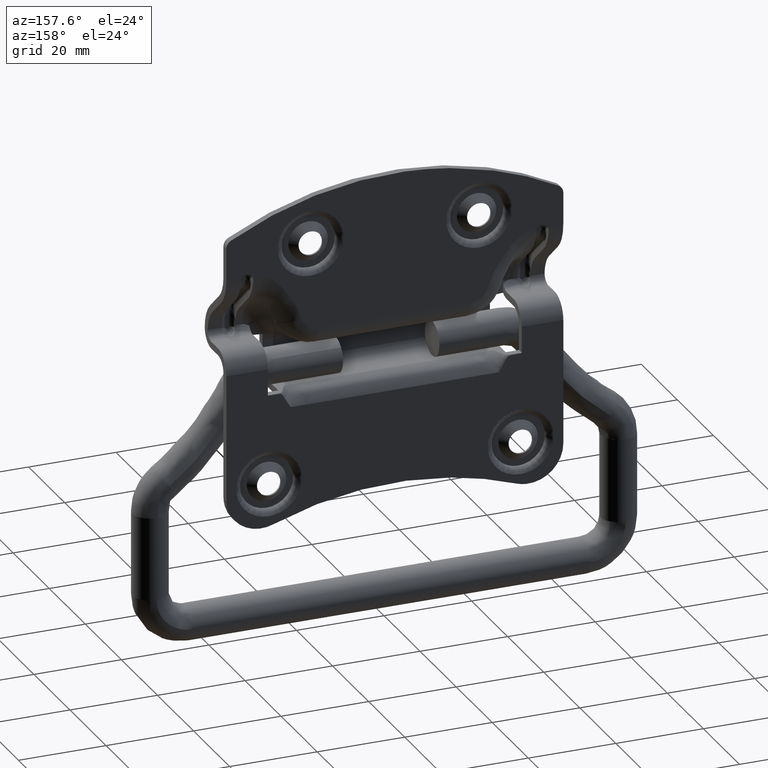
[diagram: clean part render]
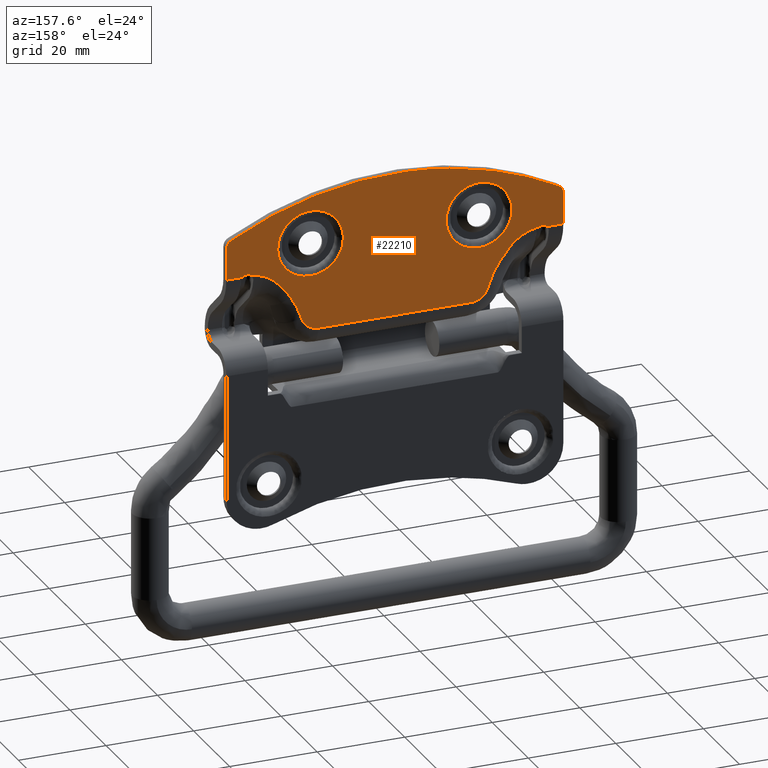
[diagram: same view with one face highlighted and labeled with its STEP entity id]
A machine part, auxiliary view. The second image highlights one B-rep face of the part: STEP entity #22210.
In plain terms, the highlighted face is a freeform B-spline surface patch.
Its self-contained STEP definition (entity closure, byte-faithful):
#5040=CARTESIAN_POINT('',(-11.752348581985389,6.0,29.311494283615129));
#5041=VERTEX_POINT('',#5040);
#5053=CARTESIAN_POINT('',(-19.249980000000001,6.0,21.999970000000001));
#5054=VERTEX_POINT('',#5053);
#5055=CARTESIAN_POINT('',(-19.249980000000001,6.0,21.999970000000001));
#5056=CARTESIAN_POINT('',(-18.706581782588589,6.000000000000016,21.999884955770280));
#5057=CARTESIAN_POINT('',(-17.589635774256450,5.999999999999968,22.121886666030701));
#5058=CARTESIAN_POINT('',(-15.837091079472900,6.000000000000022,22.725905153063430));
#5059=CARTESIAN_POINT('',(-14.267263426572519,6.000000000000012,23.780945138734179));
#5060=CARTESIAN_POINT('',(-13.105954141694211,5.999999999999961,25.106784472231109));
#5061=CARTESIAN_POINT('',(-12.345599474631941,6.000000000000077,26.452837942339801));
#5062=CARTESIAN_POINT('',(-11.886035445545410,5.999999999999953,27.835153370345179));
#5063=CARTESIAN_POINT('',(-11.764433248960360,6.000000000000024,28.828626353251831));
#5064=CARTESIAN_POINT('',(-11.752348581985389,6.0,29.311494283615129));
#5065=B_SPLINE_CURVE_WITH_KNOTS('',3,(#5055,#5056,#5057,#5058,#5059,#5060,#5061,#5062,#5063,#5064),.UNSPECIFIED.,.F.,.U.,(4,1,1,1,1,1,1,4),(0.000000187609178,1.630196904448907,3.350974580143111,5.524588206821608,7.245330431639269,8.603841944909389,10.143490653615340,11.592547319279671),.UNSPECIFIED.);
#5066=EDGE_CURVE('',#5054,#5041,#5065,.T.);
#5068=CARTESIAN_POINT('',(-26.747611418014611,6.0,29.688445716384869));
#5069=VERTEX_POINT('',#5068);
#5070=CARTESIAN_POINT('',(-26.747611418014611,6.0,29.688445716384869));
#5071=CARTESIAN_POINT('',(-26.766755347473069,6.000000000000018,28.940560537940531));
#5072=CARTESIAN_POINT('',(-26.613560035700370,5.999999999999957,27.720889972003182));
#5073=CARTESIAN_POINT('',(-26.017117662225221,6.000000000000051,26.172492439324969));
#5074=CARTESIAN_POINT('',(-25.315715584878401,5.999999999999926,25.024332991393191));
#5075=CARTESIAN_POINT('',(-24.529054490577700,6.000000000000084,24.132802163318580));
#5076=CARTESIAN_POINT('',(-23.596083744870270,5.999999999999860,23.349781524411920));
#5077=CARTESIAN_POINT('',(-22.603964625008711,6.000000000000255,22.751886106930019));
#5078=CARTESIAN_POINT('',(-21.120022321091231,5.999999999999867,22.169311846685378));
#5079=CARTESIAN_POINT('',(-19.998117877424761,6.000000000000029,21.999620968808760));
#5080=CARTESIAN_POINT('',(-19.249980000000001,6.0,21.999970000000001));
#5081=B_SPLINE_CURVE_WITH_KNOTS('',3,(#5070,#5071,#5072,#5073,#5074,#5075,#5076,#5077,#5078,#5079,#5080),.UNSPECIFIED.,.F.,.U.,(4,1,1,1,1,1,1,1,4),(0.000000205012448,2.244275398808053,3.646979510950958,4.956168131255454,6.265300697320289,7.200388028429834,8.603109606652161,9.725273782786275,11.969545536098551),.UNSPECIFIED.);
#5082=EDGE_CURVE('',#5069,#5054,#5081,.T.);
#5135=CARTESIAN_POINT('',(-19.249980000000001,6.0,36.999969999999998));
#5136=VERTEX_POINT('',#5135);
#5137=CARTESIAN_POINT('',(-19.249980000000001,6.0,36.999969999999998));
#5138=CARTESIAN_POINT('',(-20.004732685459128,6.000000000000020,37.000308994572997));
#5139=CARTESIAN_POINT('',(-21.272448830693140,5.999999999999928,36.806924074178248));
#5140=CARTESIAN_POINT('',(-22.834750330865688,6.000000000000102,36.137901057914867));
#5141=CARTESIAN_POINT('',(-23.890830573134242,5.999999999999914,35.428102738041162));
#5142=CARTESIAN_POINT('',(-24.983207683604778,6.000000000000069,34.425752702623427));
#5143=CARTESIAN_POINT('',(-25.918445095637392,5.999999999999958,33.106887363067429));
#5144=CARTESIAN_POINT('',(-26.576365464024502,6.000000000000024,31.375183861527891));
#5145=CARTESIAN_POINT('',(-26.733322003982838,5.999999999999991,30.261862638158298));
#5146=CARTESIAN_POINT('',(-26.747611418014611,6.0,29.688445716384869));
#5147=B_SPLINE_CURVE_WITH_KNOTS('',3,(#5137,#5138,#5139,#5140,#5141,#5142,#5143,#5144,#5145,#5146),.UNSPECIFIED.,.F.,.U.,(4,1,1,1,1,1,1,4),(0.000000187606350,2.264155939415609,3.803809354715461,5.071762420335458,6.067955246703733,8.241572758010021,9.871783452064479,11.592547319279671),.UNSPECIFIED.);
#5148=EDGE_CURVE('',#5136,#5069,#5147,.T.);
#5150=CARTESIAN_POINT('',(-11.752348581985389,6.0,29.311494283615129));
#5151=CARTESIAN_POINT('',(-11.732305070903420,6.000000000000019,30.090568413126270));
#5152=CARTESIAN_POINT('',(-11.881077671989580,5.999999999999984,31.216504995690858));
#5153=CARTESIAN_POINT('',(-12.511147828978100,6.000000000000011,32.915640698761408));
#5154=CARTESIAN_POINT('',(-13.398092949185591,5.999999999999998,34.327830114312313));
#5155=CARTESIAN_POINT('',(-14.664660938154951,6.000000000000001,35.502950341229742));
#5156=CARTESIAN_POINT('',(-16.003949101710671,6.0,36.310038556216142));
#5157=CARTESIAN_POINT('',(-17.473335649842799,6.000000000000004,36.855320092312738));
#5158=CARTESIAN_POINT('',(-18.626555458999359,5.999999999999996,37.000134992767059));
#5159=CARTESIAN_POINT('',(-19.249980000000001,6.0,36.999969999999998));
#5160=B_SPLINE_CURVE_WITH_KNOTS('',3,(#5150,#5151,#5152,#5153,#5154,#5155,#5156,#5157,#5158,#5159),.UNSPECIFIED.,.F.,.U.,(4,1,1,1,1,1,1,4),(0.000000205006218,2.337798783225296,3.366437312440208,5.423713686554982,7.293930674813488,8.509588825057652,10.099314503403569,11.969545536098590),.UNSPECIFIED.);
#5161=EDGE_CURVE('',#5041,#5136,#5160,.T.);
#5436=CARTESIAN_POINT('',(26.747651418014609,6.0,29.311494283615129));
#5437=VERTEX_POINT('',#5436);
#5449=CARTESIAN_POINT('',(19.250019999999999,6.0,21.999970000000001));
#5450=VERTEX_POINT('',#5449);
#5451=CARTESIAN_POINT('',(19.250019999999999,6.0,21.999970000000001));
#5452=CARTESIAN_POINT('',(19.763223010180919,6.000000000000009,21.999895622042239));
#5453=CARTESIAN_POINT('',(20.789611972231050,5.999999999999992,22.105726486866502));
#5454=CARTESIAN_POINT('',(22.235665844265899,6.000000000000012,22.565570273846792));
#5455=CARTESIAN_POINT('',(23.614312832279278,5.999999999999999,23.331610396096650));
#5456=CARTESIAN_POINT('',(24.666599042919970,5.999999999999998,24.251707764444099));
#5457=CARTESIAN_POINT('',(25.513262165654961,6.000000000000003,25.317954027848319));
#5458=CARTESIAN_POINT('',(26.079810860325530,6.000000000000001,26.320883970336840));
#5459=CARTESIAN_POINT('',(26.579617594679060,6.0,27.685099955365800));
#5460=CARTESIAN_POINT('',(26.731896660307079,6.000000000000004,28.677709241613819));
#5461=CARTESIAN_POINT('',(26.747651418014609,6.0,29.311494283615129));
#5462=B_SPLINE_CURVE_WITH_KNOTS('',3,(#5451,#5452,#5453,#5454,#5455,#5456,#5457,#5458,#5459,#5460,#5461),.UNSPECIFIED.,.F.,.U.,(4,1,1,1,1,1,1,1,4),(0.000000187612349,1.539602920868724,3.079272429665700,4.528349309332842,6.249073850271897,7.245330431639898,8.603841944909510,9.690660141437045,11.592547319279680),.UNSPECIFIED.);
#5463=EDGE_CURVE('',#5450,#5437,#5462,.T.);
#5465=CARTESIAN_POINT('',(11.752388581985389,6.0,29.688445716384880));
#5466=VERTEX_POINT('',#5465);
#5467=CARTESIAN_POINT('',(11.752388581985389,6.0,29.688445716384880));
#5468=CARTESIAN_POINT('',(11.732411700526921,6.000000000000022,28.909389390307251));
#5469=CARTESIAN_POINT('',(11.926333928475820,5.999999999999978,27.439295877108290));
#5470=CARTESIAN_POINT('',(12.741322980071400,5.999999999999980,25.632274423215730));
#5471=CARTESIAN_POINT('',(13.760280385788700,6.000000000000076,24.321422165409590));
#5472=CARTESIAN_POINT('',(14.822278895235261,5.999999999999881,23.395732604491851));
#5473=CARTESIAN_POINT('',(15.925152227613960,6.000000000000084,22.740476111852072));
#5474=CARTESIAN_POINT('',(17.379972874864539,5.999999999999946,22.169304536332191));
#5475=CARTESIAN_POINT('',(18.501883657833289,5.999999999999978,21.999622925846879));
#5476=CARTESIAN_POINT('',(19.250019999999999,6.0,21.999970000000001));
#5477=B_SPLINE_CURVE_WITH_KNOTS('',3,(#5467,#5468,#5469,#5470,#5471,#5472,#5473,#5474,#5475,#5476),.UNSPECIFIED.,.F.,.U.,(4,1,1,1,1,1,1,4),(0.000000205026485,2.337798783241116,4.395074179322664,5.891319962476008,7.293930674820418,8.603109606656194,9.725273782788959,11.969545536098490),.UNSPECIFIED.);
#5478=EDGE_CURVE('',#5466,#5450,#5477,.T.);
#5532=CARTESIAN_POINT('',(19.250019999999999,6.0,36.999969999999998));
#5533=VERTEX_POINT('',#5532);
#5534=CARTESIAN_POINT('',(19.250019999999999,6.0,36.999969999999998));
#5535=CARTESIAN_POINT('',(18.374435019165290,6.000000000000013,37.000631281500738));
#5536=CARTESIAN_POINT('',(17.016455784489121,5.999999999999967,36.759268017743949));
#5537=CARTESIAN_POINT('',(15.293216995390461,6.000000000000059,35.933510178109302));
#5538=CARTESIAN_POINT('',(14.134667469703279,5.999999999999927,35.048969619949233));
#5539=CARTESIAN_POINT('',(13.270326432335720,6.000000000000046,34.074242562820153));
#5540=CARTESIAN_POINT('',(12.596147062916071,5.999999999999938,33.032984997474379));
#5541=CARTESIAN_POINT('',(11.977303946598390,6.000000000000036,31.615331990963700));
#5542=CARTESIAN_POINT('',(11.770269461582920,6.000000000000001,30.412792602176701));
#5543=CARTESIAN_POINT('',(11.752388581985389,6.0,29.688445716384880));
#5544=B_SPLINE_CURVE_WITH_KNOTS('',3,(#5534,#5535,#5536,#5537,#5538,#5539,#5540,#5541,#5542,#5543),.UNSPECIFIED.,.F.,.U.,(4,1,1,1,1,1,1,4),(0.000000187608013,2.626435694060641,4.075513477145552,5.705764144151816,6.973614063770786,7.969872504978349,9.418948580281597,11.592547319279680),.UNSPECIFIED.);
#5545=EDGE_CURVE('',#5533,#5466,#5544,.T.);
#5547=CARTESIAN_POINT('',(26.747651418014609,6.0,29.311494283615129));
#5548=CARTESIAN_POINT('',(26.758635889628600,5.999999999999993,29.747735479370860));
#5549=CARTESIAN_POINT('',(26.696504862261179,6.000000000000008,30.747089966912480));
#5550=CARTESIAN_POINT('',(26.331379895895150,6.000000000000011,32.110550765414153));
#5551=CARTESIAN_POINT('',(25.658069319875871,5.999999999999989,33.487134951067908));
#5552=CARTESIAN_POINT('',(24.673488889165011,6.000000000000030,34.787562109536807));
#5553=CARTESIAN_POINT('',(23.377335932003700,5.999999999999972,35.834601121911120));
#5554=CARTESIAN_POINT('',(22.032362988922319,6.000000000000038,36.502990608908419));
#5555=CARTESIAN_POINT('',(20.714999664421651,5.999999999999911,36.900440593251730));
#5556=CARTESIAN_POINT('',(19.779924234331261,6.000000000000217,37.000048877208997));
#5557=CARTESIAN_POINT('',(19.250019999999999,6.0,36.999969999999998));
#5558=B_SPLINE_CURVE_WITH_KNOTS('',3,(#5547,#5548,#5549,#5550,#5551,#5552,#5553,#5554,#5555,#5556,#5557),.UNSPECIFIED.,.F.,.U.,(4,1,1,1,1,1,1,1,4),(0.000000205007519,1.309156063196216,2.992387257449309,4.208069355683024,5.891319962467752,7.855003900156901,9.164186246023380,10.379842036285041,11.969545536098600),.UNSPECIFIED.);
#5559=EDGE_CURVE('',#5437,#5533,#5558,.T.);
#10700=CARTESIAN_POINT('',(32.931584603597450,6.0,24.446908381359400));
#10701=VERTEX_POINT('',#10700);
#10712=CARTESIAN_POINT('',(34.803566635317303,6.0,24.246231919171350));
#10713=VERTEX_POINT('',#10712);
#10714=CARTESIAN_POINT('',(34.803566635317303,6.0,24.246231919171350));
#10715=CARTESIAN_POINT('',(34.700956287907211,6.000000000000007,24.354831553028571));
#10716=CARTESIAN_POINT('',(34.444711152292669,5.999999999999994,24.553121463950561));
#10717=CARTESIAN_POINT('',(33.972684493736040,5.999999999999996,24.713696619583601));
#10718=CARTESIAN_POINT('',(33.430835318285610,6.000000000000026,24.699633205997600));
#10719=CARTESIAN_POINT('',(33.090072298542999,5.999999999999980,24.555518750343079));
#10720=CARTESIAN_POINT('',(32.931584603597450,6.0,24.446908381359400));
#10721=B_SPLINE_CURVE_WITH_KNOTS('',3,(#10714,#10715,#10716,#10717,#10718,#10719,#10720),.UNSPECIFIED.,.F.,.U.,(4,1,1,1,4),(0.000000189873177,0.448250497921657,0.960540906119593,1.472823370665655,2.049145935361267),.UNSPECIFIED.);
#10722=EDGE_CURVE('',#10713,#10701,#10721,.T.);
#10776=CARTESIAN_POINT('',(-34.803566635317402,6.0,24.246231919171350));
#10777=VERTEX_POINT('',#10776);
#10793=CARTESIAN_POINT('',(-32.931584603597813,6.0,24.446908381359599));
#10794=VERTEX_POINT('',#10793);
#10795=CARTESIAN_POINT('',(-32.931584603597813,6.0,24.446908381359599));
#10796=CARTESIAN_POINT('',(-33.054879916700337,6.0,24.531287590369711));
#10797=CARTESIAN_POINT('',(-33.347339679320221,6.000000000000004,24.670763508333181));
#10798=CARTESIAN_POINT('',(-33.842674989355203,6.000000000000006,24.727637787920809));
#10799=CARTESIAN_POINT('',(-34.369215409915732,5.999999999999996,24.599020116360549));
#10800=CARTESIAN_POINT('',(-34.671714694553764,6.000000000000009,24.385982036722972));
#10801=CARTESIAN_POINT('',(-34.803566635317402,6.0,24.246231919171350));
#10802=B_SPLINE_CURVE_WITH_KNOTS('',3,(#10795,#10796,#10797,#10798,#10799,#10800,#10801),.UNSPECIFIED.,.F.,.U.,(4,1,1,1,4),(0.000000189873724,0.448250497921667,0.960540906119293,1.472823370665238,2.049145935360953),.UNSPECIFIED.);
#10803=EDGE_CURVE('',#10794,#10777,#10802,.T.);
#13003=CARTESIAN_POINT('',(37.435899283481852,6.0,33.200460066228707));
#13004=VERTEX_POINT('',#13003);
#13010=CARTESIAN_POINT('',(-37.435755887976548,6.0,33.200525403817799));
#13011=VERTEX_POINT('',#13010);
#13012=CARTESIAN_POINT('',(37.435899283481852,6.0,33.200460066228707));
#13013=CARTESIAN_POINT('',(33.222155936545413,6.000000000000014,35.432215380484031));
#13014=CARTESIAN_POINT('',(27.117547638339651,5.999999999999953,37.994813814399201));
#13015=CARTESIAN_POINT('',(17.344869568457689,6.000000000000061,40.740774703400213));
#13016=CARTESIAN_POINT('',(9.332316200410164,5.999999999999852,42.141792253895652));
#13017=CARTESIAN_POINT('',(0.000667585305614,6.000000000000222,42.657029283702357));
#13018=CARTESIAN_POINT('',(-8.117133633943837,5.999999999999861,42.224223575617522));
#13019=CARTESIAN_POINT('',(-17.348979815537991,6.000000000000068,40.790618498895412));
#13020=CARTESIAN_POINT('',(-27.050006669708079,5.999999999999996,38.084669366061263));
#13021=CARTESIAN_POINT('',(-34.118457438736783,5.999999999999932,34.957172169900751));
#13022=CARTESIAN_POINT('',(-37.435755887976548,6.0,33.200525403817799));
#13023=B_SPLINE_CURVE_WITH_KNOTS('',3,(#13012,#13013,#13014,#13015,#13016,#13017,#13018,#13019,#13020,#13021,#13022),.UNSPECIFIED.,.F.,.U.,(4,1,1,1,1,1,1,1,4),(0.000000024775559,14.304657296743880,19.783053004830759,30.435471359144149,38.653079249917731,47.783656387307822,54.783835098354700,66.653687108034276,77.914790421352976),.UNSPECIFIED.);
#13024=EDGE_CURVE('',#13004,#13011,#13023,.T.);
#13066=CARTESIAN_POINT('',(38.500020000000013,6.0,31.432970000000001));
#13067=VERTEX_POINT('',#13066);
#13073=CARTESIAN_POINT('',(38.500020000000013,6.0,31.432970000000001));
#13074=CARTESIAN_POINT('',(38.500043668211092,5.999999999999996,31.591022264568021));
#13075=CARTESIAN_POINT('',(38.459667239992399,6.000000000000004,31.929718997911571));
#13076=CARTESIAN_POINT('',(38.260684341106213,6.000000000000003,32.439136269507607));
#13077=CARTESIAN_POINT('',(37.910274250313293,6.000000000000003,32.890088320109079));
#13078=CARTESIAN_POINT('',(37.595562087301822,5.999999999999988,33.115966986359808));
#13079=CARTESIAN_POINT('',(37.435899283481852,6.0,33.200460066228707));
#13080=B_SPLINE_CURVE_WITH_KNOTS('',3,(#13073,#13074,#13075,#13076,#13077,#13078,#13079),.UNSPECIFIED.,.F.,.U.,(4,1,1,1,4),(0.000000105197396,0.474189928477507,1.016137563725012,1.625809543977298,2.167745987057525),.UNSPECIFIED.);
#13081=EDGE_CURVE('',#13067,#13004,#13080,.T.);
#13112=CARTESIAN_POINT('',(-38.500020000000013,6.0,31.432970000000001));
#13113=VERTEX_POINT('',#13112);
#13114=CARTESIAN_POINT('',(-37.435755887976548,6.0,33.200525403817799));
#13115=CARTESIAN_POINT('',(-37.655403745283003,6.000000000000009,33.084473293800272));
#13116=CARTESIAN_POINT('',(-37.996398288881643,5.999999999999994,32.812013644484587));
#13117=CARTESIAN_POINT('',(-38.393627552860892,6.000000000000003,32.200381535252539));
#13118=CARTESIAN_POINT('',(-38.500377465582169,6.000000000000001,31.726601824867931));
#13119=CARTESIAN_POINT('',(-38.500020000000013,6.0,31.432970000000001));
#13120=B_SPLINE_CURVE_WITH_KNOTS('',3,(#13114,#13115,#13116,#13117,#13118,#13119),.UNSPECIFIED.,.F.,.U.,(4,1,1,4),(0.000000105173894,0.745217402078288,1.287154031748189,2.167865938540388),.UNSPECIFIED.);
#13121=EDGE_CURVE('',#13011,#13113,#13120,.T.);
#14473=CARTESIAN_POINT('',(23.853242307832151,6.0,17.820449445159149));
#14474=VERTEX_POINT('',#14473);
#14486=CARTESIAN_POINT('',(32.300020000000004,6.0,24.364339704599050));
#14487=VERTEX_POINT('',#14486);
#14488=CARTESIAN_POINT('',(32.300020000000004,6.0,24.364339704599050));
#14489=CARTESIAN_POINT('',(29.431119044801999,6.0,23.898327263213350));
#14490=CARTESIAN_POINT('',(27.183740581870008,6.0,21.903502244178640));
#14491=CARTESIAN_POINT('',(26.292478316160999,6.0,21.112397276554240));
#14492=CARTESIAN_POINT('',(25.402871668193999,6.0,19.978631548607041));
#14493=CARTESIAN_POINT('',(24.835816050723050,6.0,19.255943351079541));
#14494=CARTESIAN_POINT('',(23.853242307832151,6.0,17.820449445159149));
#14495=B_SPLINE_CURVE_WITH_KNOTS('',2,(#14488,#14489,#14490,#14491,#14492,#14493,#14494),.UNSPECIFIED.,.F.,.U.,(3,2,2,3),(0.0,0.500000000000000,0.750000000000000,1.0),.UNSPECIFIED.);
#14496=EDGE_CURVE('',#14487,#14474,#14495,.T.);
#14498=CARTESIAN_POINT('',(32.300020000000004,6.0,24.364339704599050));
#14499=CARTESIAN_POINT('',(32.931584603597450,6.0,24.446908381359400));
#14500=QUASI_UNIFORM_CURVE('',1,(#14498,#14499),.UNSPECIFIED.,.F.,.U.);
#14501=EDGE_CURVE('',#14487,#10701,#14500,.T.);
#14577=CARTESIAN_POINT('',(21.346923573338049,6.0,12.587775950892899));
#14578=VERTEX_POINT('',#14577);
#14591=CARTESIAN_POINT('',(23.853242307832151,6.0,17.820449445159149));
#14592=CARTESIAN_POINT('',(23.578175043642339,6.000000000000002,17.418587397116209));
#14593=CARTESIAN_POINT('',(23.323589752531209,6.000000000000001,17.005931751728149));
#14594=CARTESIAN_POINT('',(22.848264870529441,6.000000000000003,16.162784441998230));
#14595=CARTESIAN_POINT('',(22.627556078867940,6.0,15.732276547067800));
#14596=CARTESIAN_POINT('',(22.318207091625300,6.0,15.075071747821051));
#14597=CARTESIAN_POINT('',(22.218723750004539,6.0,14.854088968401580));
#14598=CARTESIAN_POINT('',(22.026549251476240,6.0,14.408544061684090));
#14599=CARTESIAN_POINT('',(21.933801061776009,6.000000000000001,14.183832934862339));
#14600=CARTESIAN_POINT('',(21.665655702500459,5.999999999999999,13.505929955501850));
#14601=CARTESIAN_POINT('',(21.500316230521729,5.999999999999998,13.049052214043821));
#14602=CARTESIAN_POINT('',(21.346923573338049,6.0,12.587775950892899));
#14603=B_SPLINE_CURVE_WITH_KNOTS('',3,(#14591,#14592,#14593,#14594,#14595,#14596,#14597,#14598,#14599,#14600,#14601,#14602),.UNSPECIFIED.,.F.,.U.,(4,2,2,2,2,4),(0.0,0.250000000000001,0.500000000000002,0.625000000000001,0.750000000000001,1.0),.UNSPECIFIED.);
#14604=EDGE_CURVE('',#14474,#14578,#14603,.T.);
#14673=CARTESIAN_POINT('',(21.273133700608849,6.0,12.362710309048500));
#14674=VERTEX_POINT('',#14673);
#14687=CARTESIAN_POINT('',(21.346923573338049,6.0,12.587775950892899));
#14688=CARTESIAN_POINT('',(21.273133700608849,6.0,12.362710309048500));
#14689=QUASI_UNIFORM_CURVE('',1,(#14687,#14688),.UNSPECIFIED.,.F.,.U.);
#14690=EDGE_CURVE('',#14578,#14674,#14689,.T.);
#14733=CARTESIAN_POINT('',(17.469295052986400,6.0,9.599969999999999));
#14734=VERTEX_POINT('',#14733);
#14748=CARTESIAN_POINT('',(21.273133700608849,6.0,12.362710309048500));
#14749=CARTESIAN_POINT('',(21.111730089576259,6.000000000000001,11.864671938459001));
#14750=CARTESIAN_POINT('',(20.641375687970029,5.999999999999999,11.027236245761729));
#14751=CARTESIAN_POINT('',(19.694226986218471,5.999999999999994,10.218657488589830));
#14752=CARTESIAN_POINT('',(18.646915438141260,6.000000000000026,9.723618699881961));
#14753=CARTESIAN_POINT('',(17.914288786239862,5.999999999999988,9.599657620014947));
#14754=CARTESIAN_POINT('',(17.469295052986400,6.0,9.599969999999999));
#14755=B_SPLINE_CURVE_WITH_KNOTS('',3,(#14748,#14749,#14750,#14751,#14752,#14753,#14754),.UNSPECIFIED.,.F.,.U.,(4,1,1,1,4),(0.000000165217140,1.570435178571927,2.826768913318665,3.690508347524600,5.025375813662333),.UNSPECIFIED.);
#14756=EDGE_CURVE('',#14674,#14734,#14755,.T.);
#14790=CARTESIAN_POINT('',(-17.469295052986400,6.0,9.599969999999999));
#14791=VERTEX_POINT('',#14790);
#14805=CARTESIAN_POINT('',(17.469295052986400,6.0,9.599969999999999));
#14806=CARTESIAN_POINT('',(-17.469295052986400,6.0,9.599969999999999));
#14807=QUASI_UNIFORM_CURVE('',1,(#14805,#14806),.UNSPECIFIED.,.F.,.U.);
#14808=EDGE_CURVE('',#14734,#14791,#14807,.T.);
#14850=CARTESIAN_POINT('',(-21.273133700610149,6.0,12.362710309052501));
#14851=VERTEX_POINT('',#14850);
#14865=CARTESIAN_POINT('',(-17.469295052986400,6.0,9.599969999999999));
#14866=CARTESIAN_POINT('',(-17.861914620710440,6.000000000000004,9.599786131551895));
#14867=CARTESIAN_POINT('',(-18.542325561879821,5.999999999999998,9.701020049390557));
#14868=CARTESIAN_POINT('',(-19.511302535748701,6.000000000000004,10.113385520222110));
#14869=CARTESIAN_POINT('',(-20.185490142306630,6.000000000000005,10.623549339055090));
#14870=CARTESIAN_POINT('',(-20.840478656501560,6.000000000000011,11.375180583381249));
#14871=CARTESIAN_POINT('',(-21.135798345567490,5.999999999999989,11.939421401477640));
#14872=CARTESIAN_POINT('',(-21.273133700610149,6.0,12.362710309052501));
#14873=B_SPLINE_CURVE_WITH_KNOTS('',3,(#14865,#14866,#14867,#14868,#14869,#14870,#14871,#14872),.UNSPECIFIED.,.F.,.U.,(4,1,1,1,1,4),(0.000000165221712,1.177822107602622,2.041591976143172,3.140856069822459,3.690508347528822,5.025375813666515),.UNSPECIFIED.);
#14874=EDGE_CURVE('',#14791,#14851,#14873,.T.);
#14941=CARTESIAN_POINT('',(-21.346923573338049,6.0,12.587775950892899));
#14942=VERTEX_POINT('',#14941);
#14955=CARTESIAN_POINT('',(-21.273133700610149,6.0,12.362710309052501));
#14956=CARTESIAN_POINT('',(-21.346923573338049,6.0,12.587775950892899));
#14957=QUASI_UNIFORM_CURVE('',1,(#14955,#14956),.UNSPECIFIED.,.F.,.U.);
#14958=EDGE_CURVE('',#14851,#14942,#14957,.T.);
#15030=CARTESIAN_POINT('',(-23.853242307831952,6.0,17.820449445158850));
#15031=VERTEX_POINT('',#15030);
#15043=CARTESIAN_POINT('',(-21.346923573338049,6.0,12.587775950892899));
#15044=CARTESIAN_POINT('',(-21.500702695849661,6.000000000000003,13.050214377119790));
#15045=CARTESIAN_POINT('',(-21.666113064157891,6.000000000000001,13.507081729730579));
#15046=CARTESIAN_POINT('',(-22.022663648670392,6.000000000000001,14.408492486231070));
#15047=CARTESIAN_POINT('',(-22.213795373984329,6.0,14.853039957043251));
#15048=CARTESIAN_POINT('',(-22.625467386689252,6.000000000000001,15.728048938561580));
#15049=CARTESIAN_POINT('',(-22.845989419826171,6.0,16.158519192595389));
#15050=CARTESIAN_POINT('',(-23.321721607030032,5.999999999999999,17.002844964917191));
#15051=CARTESIAN_POINT('',(-23.576895404783620,5.999999999999999,17.416717896963071));
#15052=CARTESIAN_POINT('',(-23.853242307831952,6.0,17.820449445158850));
#15053=B_SPLINE_CURVE_WITH_KNOTS('',3,(#15043,#15044,#15045,#15046,#15047,#15048,#15049,#15050,#15051,#15052),.UNSPECIFIED.,.F.,.U.,(4,2,2,2,4),(0.0,0.250000000000000,0.500000000000001,0.750000000000000,1.0),.UNSPECIFIED.);
#15054=EDGE_CURVE('',#14942,#15031,#15053,.T.);
#15835=CARTESIAN_POINT('',(-32.300020000000004,6.0,24.364339709143401));
#15836=VERTEX_POINT('',#15835);
#15837=CARTESIAN_POINT('',(-32.300020000000004,6.0,24.364339709143401));
#15838=CARTESIAN_POINT('',(-32.931584603597813,6.0,24.446908381359599));
#15839=QUASI_UNIFORM_CURVE('',1,(#15837,#15838),.UNSPECIFIED.,.F.,.U.);
#15840=EDGE_CURVE('',#15836,#10794,#15839,.T.);
#15842=CARTESIAN_POINT('',(-23.853242307831920,6.0,17.820449445158840));
#15843=CARTESIAN_POINT('',(-24.835206572759951,6.0,19.255052932265151));
#15844=CARTESIAN_POINT('',(-25.402871671778900,6.0,19.978631553179550));
#15845=CARTESIAN_POINT('',(-26.291441724194950,6.0,21.111254105144852));
#15846=CARTESIAN_POINT('',(-27.183740590702062,6.0,21.903502252033238));
#15847=CARTESIAN_POINT('',(-29.430344586625971,6.0,23.898201471513250));
#15848=CARTESIAN_POINT('',(-32.300020000000004,6.0,24.364339709143401));
#15849=B_SPLINE_CURVE_WITH_KNOTS('',2,(#15842,#15843,#15844,#15845,#15846,#15847,#15848),.UNSPECIFIED.,.F.,.U.,(3,2,2,3),(0.0,0.250000000000000,0.500000000000000,1.0),.UNSPECIFIED.);
#15850=EDGE_CURVE('',#15031,#15836,#15849,.T.);
#15916=CARTESIAN_POINT('',(-38.500020000000013,6.0,24.246231919171350));
#15917=VERTEX_POINT('',#15916);
#15928=CARTESIAN_POINT('',(-34.803566635317402,6.0,24.246231919171350));
#15929=CARTESIAN_POINT('',(-38.500020000000013,6.0,24.246231919171350));
#15930=QUASI_UNIFORM_CURVE('',1,(#15928,#15929),.UNSPECIFIED.,.F.,.U.);
#15931=EDGE_CURVE('',#10777,#15917,#15930,.T.);
#15953=CARTESIAN_POINT('',(38.500020000000013,6.0,24.246231919171350));
#15954=VERTEX_POINT('',#15953);
#15982=CARTESIAN_POINT('',(38.500020000000013,6.0,24.246231919171350));
#15983=CARTESIAN_POINT('',(34.803566635317303,6.0,24.246231919171350));
#15984=QUASI_UNIFORM_CURVE('',1,(#15982,#15983),.UNSPECIFIED.,.F.,.U.);
#15985=EDGE_CURVE('',#15954,#10713,#15984,.T.);
#22031=CARTESIAN_POINT('',(-38.500020000000013,6.0,24.246231919171350));
#22032=CARTESIAN_POINT('',(-38.500020000000013,6.0,31.432970000000001));
#22033=QUASI_UNIFORM_CURVE('',1,(#22031,#22032),.UNSPECIFIED.,.F.,.U.);
#22034=EDGE_CURVE('',#15917,#13113,#22033,.T.);
#22093=CARTESIAN_POINT('',(38.500020000000013,6.0,24.246231919171350));
#22094=CARTESIAN_POINT('',(38.500020000000013,6.0,31.432970000000001));
#22095=QUASI_UNIFORM_CURVE('',1,(#22093,#22094),.UNSPECIFIED.,.F.,.U.);
#22096=EDGE_CURVE('',#15954,#13067,#22095,.T.);
#22171=CARTESIAN_POINT('',(-42.346170850839492,6.0,44.143340476550861));
#22172=CARTESIAN_POINT('',(-42.346170850839492,6.0,7.956613442009326));
#22173=CARTESIAN_POINT('',(42.346168097103458,6.0,44.143340476550861));
#22174=CARTESIAN_POINT('',(42.346168097103458,6.0,7.956613442009326));
#22175=B_SPLINE_SURFACE_WITH_KNOTS('',1,1,((#22171,#22173),(#22172,#22174)),.UNSPECIFIED.,.F.,.F.,.U.,(2,2),(2,2),(0.0,36.186727034541533),(0.0,84.692338947942943),.UNSPECIFIED.);
#22176=ORIENTED_EDGE('',*,*,#13024,.F.);
#22177=ORIENTED_EDGE('',*,*,#13081,.F.);
#22178=ORIENTED_EDGE('',*,*,#22096,.F.);
#22179=ORIENTED_EDGE('',*,*,#15985,.T.);
#22180=ORIENTED_EDGE('',*,*,#10722,.T.);
#22181=ORIENTED_EDGE('',*,*,#14501,.F.);
#22182=ORIENTED_EDGE('',*,*,#14496,.T.);
#22183=ORIENTED_EDGE('',*,*,#14604,.T.);
#22184=ORIENTED_EDGE('',*,*,#14690,.T.);
#22185=ORIENTED_EDGE('',*,*,#14756,.T.);
#22186=ORIENTED_EDGE('',*,*,#14808,.T.);
#22187=ORIENTED_EDGE('',*,*,#14874,.T.);
#22188=ORIENTED_EDGE('',*,*,#14958,.T.);
#22189=ORIENTED_EDGE('',*,*,#15054,.T.);
#22190=ORIENTED_EDGE('',*,*,#15850,.T.);
#22191=ORIENTED_EDGE('',*,*,#15840,.T.);
#22192=ORIENTED_EDGE('',*,*,#10803,.T.);
#22193=ORIENTED_EDGE('',*,*,#15931,.T.);
#22194=ORIENTED_EDGE('',*,*,#22034,.T.);
#22195=ORIENTED_EDGE('',*,*,#13121,.F.);
#22196=EDGE_LOOP('',(#22176,#22177,#22178,#22179,#22180,#22181,#22182,#22183,#22184,#22185,#22186,#22187,#22188,#22189,#22190,#22191,#22192,#22193,#22194,#22195));
#22197=FACE_OUTER_BOUND('',#22196,.T.);
#22198=ORIENTED_EDGE('',*,*,#5463,.T.);
#22199=ORIENTED_EDGE('',*,*,#5559,.T.);
#22200=ORIENTED_EDGE('',*,*,#5545,.T.);
#22201=ORIENTED_EDGE('',*,*,#5478,.T.);
#22202=EDGE_LOOP('',(#22198,#22199,#22200,#22201));
#22203=FACE_BOUND('',#22202,.T.);
#22204=ORIENTED_EDGE('',*,*,#5066,.T.);
#22205=ORIENTED_EDGE('',*,*,#5161,.T.);
#22206=ORIENTED_EDGE('',*,*,#5148,.T.);
#22207=ORIENTED_EDGE('',*,*,#5082,.T.);
#22208=EDGE_LOOP('',(#22204,#22205,#22206,#22207));
#22209=FACE_BOUND('',#22208,.T.);
#22210=ADVANCED_FACE('',(#22197,#22203,#22209),#22175,.F.);